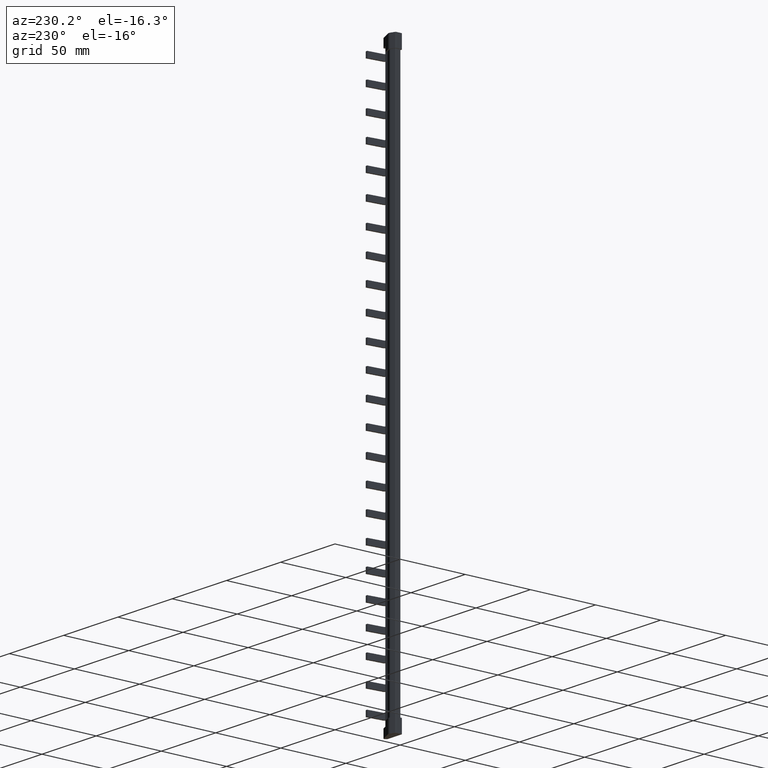
[diagram: clean part render]
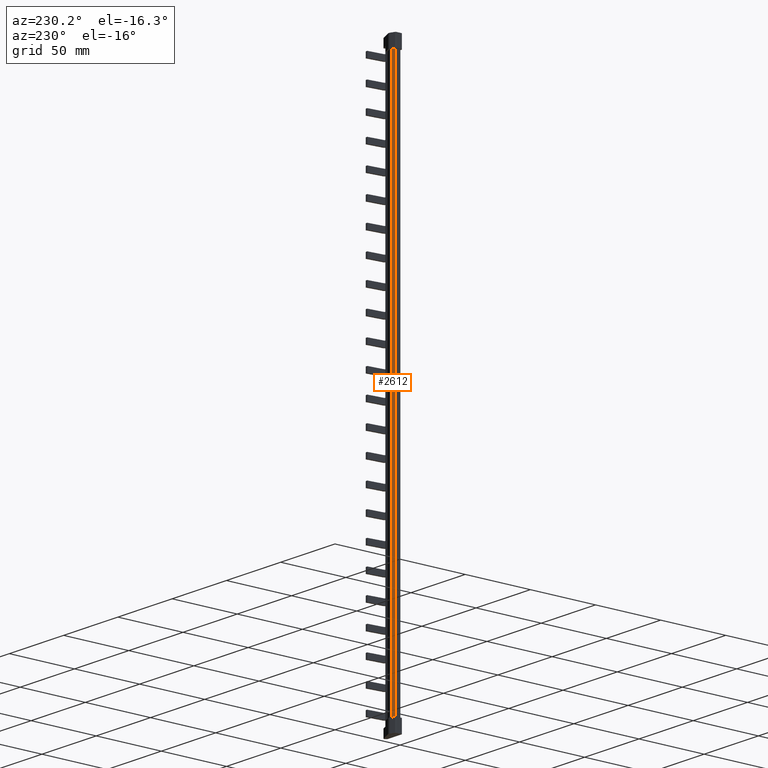
[diagram: same view with one face highlighted and labeled with its STEP entity id]
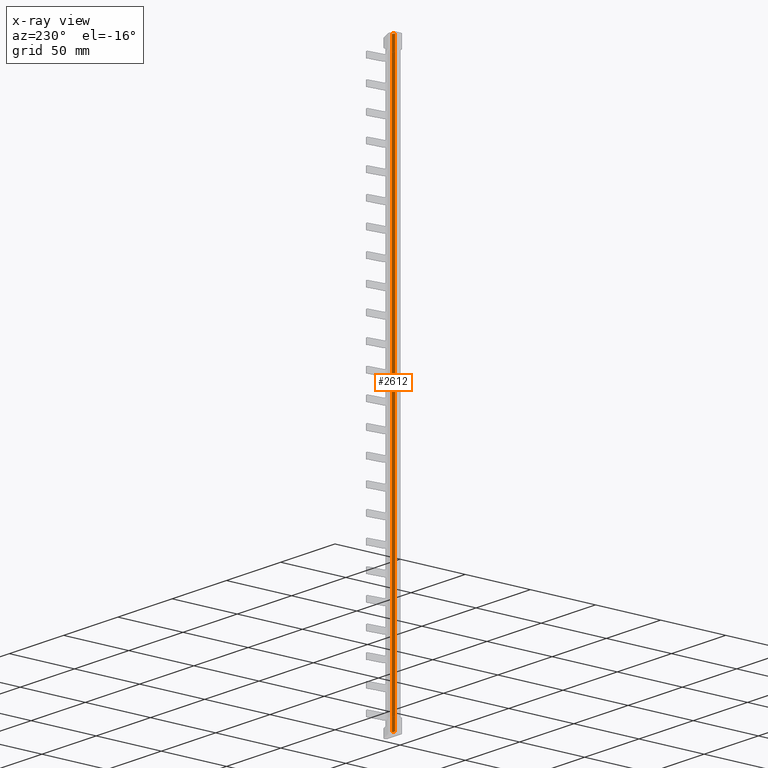
[diagram: x-ray of the same camera — body ghosted, the highlighted face saturated]
A machine part, auxiliary view. The second image highlights one B-rep face of the part: STEP entity #2612.
The next image is the same camera in x-ray: the body ghosted, the highlighted face saturated — about 0% of this face is hidden behind the body in this view.
In plain terms, the highlighted planar face has unit normal (-0.3358, 0.9419, 0).
Its self-contained STEP definition (entity closure, byte-faithful):
#1245 = EDGE_LOOP ( 'NONE', ( #8025, #8046, #12826, #12773, #12893, #12834 ) ) ;
#2612 = ADVANCED_FACE ( 'NONE', ( #27262 ), #27277, .T. ) ;
#3451 = LINE ( 'NONE', #3476, #9452 ) ;
#3468 = DIRECTION ( 'NONE',  ( 0.9419238198400018400, 0.3358266183881494200, 0.0000000000000000000 ) ) ;
#3476 = CARTESIAN_POINT ( 'NONE',  ( 1.856509959660052100, 4.798316931443761000, 219.0000000000000000 ) ) ;
#4177 = VECTOR ( 'NONE', #15935, 1000.000000000000000 ) ;
#4193 = VECTOR ( 'NONE', #15867, 1000.000000000000000 ) ;
#5415 = EDGE_CURVE ( 'NONE', #26223, #26252, #8647, .T. ) ;
#5482 = EDGE_CURVE ( 'NONE', #26226, #26223, #3451, .T. ) ;
#8025 = ORIENTED_EDGE ( 'NONE', *, *, #24465, .F. ) ;
#8046 = ORIENTED_EDGE ( 'NONE', *, *, #12939, .F. ) ;
#8647 = LINE ( 'NONE', #8675, #10949 ) ;
#8664 = DIRECTION ( 'NONE',  ( 0.0000000000000000000, 0.0000000000000000000, -1.000000000000000000 ) ) ;
#8675 = CARTESIAN_POINT ( 'NONE',  ( 1.856509959660052100, 4.798316931443761000, 199.0000000000000000 ) ) ;
#9452 = VECTOR ( 'NONE', #3468, 1000.000000000000100 ) ;
#10949 = VECTOR ( 'NONE', #8664, 1000.000000000000000 ) ;
#12773 = ORIENTED_EDGE ( 'NONE', *, *, #5415, .T. ) ;
#12826 = ORIENTED_EDGE ( 'NONE', *, *, #5482, .T. ) ;
#12834 = ORIENTED_EDGE ( 'NONE', *, *, #12892, .T. ) ;
#12892 = EDGE_CURVE ( 'NONE', #25794, #25793, #15899, .T. ) ;
#12893 = ORIENTED_EDGE ( 'NONE', *, *, #24437, .T. ) ;
#12939 = EDGE_CURVE ( 'NONE', #26226, #25790, #15947, .T. ) ;
#15867 = DIRECTION ( 'NONE',  ( -5.795291887954810400E-024, -2.066210914630790500E-024, -1.000000000000000000 ) ) ;
#15873 = CARTESIAN_POINT ( 'NONE',  ( 1.856509959635313000, 4.798316931434940500, 199.0000000000000000 ) ) ;
#15899 = LINE ( 'NONE', #15873, #4193 ) ;
#15924 = CARTESIAN_POINT ( 'NONE',  ( -0.2554380165529224200, 4.045338471695525400, 199.0000000000000000 ) ) ;
#15935 = DIRECTION ( 'NONE',  ( 0.0000000000000000000, 0.0000000000000000000, -1.000000000000000000 ) ) ;
#15947 = LINE ( 'NONE', #15924, #4177 ) ;
#24437 = EDGE_CURVE ( 'NONE', #26252, #25794, #35838, .T. ) ;
#24465 = EDGE_CURVE ( 'NONE', #25790, #25793, #35928, .T. ) ;
#25790 = VERTEX_POINT ( 'NONE', #28231 ) ;
#25793 = VERTEX_POINT ( 'NONE', #28269 ) ;
#25794 = VERTEX_POINT ( 'NONE', #28276 ) ;
#26223 = VERTEX_POINT ( 'NONE', #28689 ) ;
#26226 = VERTEX_POINT ( 'NONE', #28717 ) ;
#26252 = VERTEX_POINT ( 'NONE', #28798 ) ;
#27247 = CARTESIAN_POINT ( 'NONE',  ( 1.856509959660052100, 4.798316931443761000, 199.0000000000000000 ) ) ;
#27248 = DIRECTION ( 'NONE',  ( -0.3358266183881494800, 0.9419238198400018400, 0.0000000000000000000 ) ) ;
#27262 = FACE_OUTER_BOUND ( 'NONE', #1245, .T. ) ;
#27277 = PLANE ( 'NONE',  #30282 ) ;
#27278 = DIRECTION ( 'NONE',  ( -0.9419238198400018400, -0.3358266183881494800, 0.0000000000000000000 ) ) ;
#28231 = CARTESIAN_POINT ( 'NONE',  ( -0.2554380165529274200, 4.045338471695533400, -210.0000000000000000 ) ) ;
#28269 = CARTESIAN_POINT ( 'NONE',  ( 1.856509959660071200, 4.798316931443708600, -210.0000000000000000 ) ) ;
#28276 = CARTESIAN_POINT ( 'NONE',  ( 1.856509959660044700, 4.798316931443780600, -200.9000000000000100 ) ) ;
#28689 = CARTESIAN_POINT ( 'NONE',  ( 1.856509959660072000, 4.798316931443709500, 219.0000000000000000 ) ) ;
#28717 = CARTESIAN_POINT ( 'NONE',  ( -0.2554380165529274200, 4.045338471695533400, 219.0000000000000000 ) ) ;
#28798 = CARTESIAN_POINT ( 'NONE',  ( 1.856509959660044300, 4.798316931443780600, 209.9000000000000100 ) ) ;
#30282 = AXIS2_PLACEMENT_3D ( 'NONE', #27247, #27248, #27278 ) ;
#35478 = VECTOR ( 'NONE', #35913, 1000.000000000000000 ) ;
#35547 = VECTOR ( 'NONE', #35960, 1000.000000000000100 ) ;
#35838 = LINE ( 'NONE', #35873, #35478 ) ;
#35873 = CARTESIAN_POINT ( 'NONE',  ( 1.856509959660052100, 4.798316931443761000, 199.0000000000000000 ) ) ;
#35913 = DIRECTION ( 'NONE',  ( 0.0000000000000000000, 0.0000000000000000000, -1.000000000000000000 ) ) ;
#35928 = LINE ( 'NONE', #35954, #35547 ) ;
#35954 = CARTESIAN_POINT ( 'NONE',  ( 1.856509959660052100, 4.798316931443761000, -210.0000000000000300 ) ) ;
#35960 = DIRECTION ( 'NONE',  ( 0.9419238198400018400, 0.3358266183881494200, 0.0000000000000000000 ) ) ;